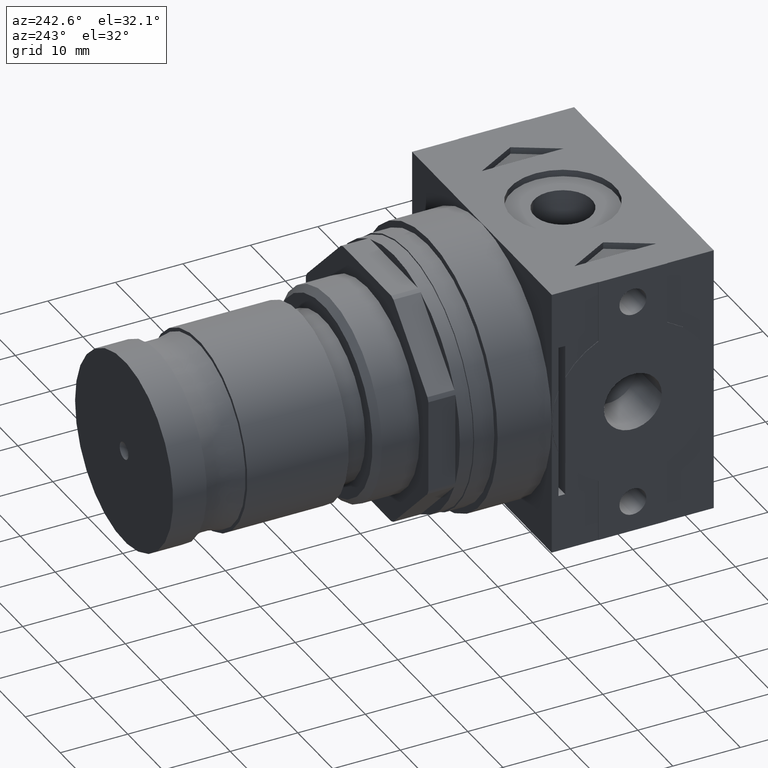
[diagram: clean part render]
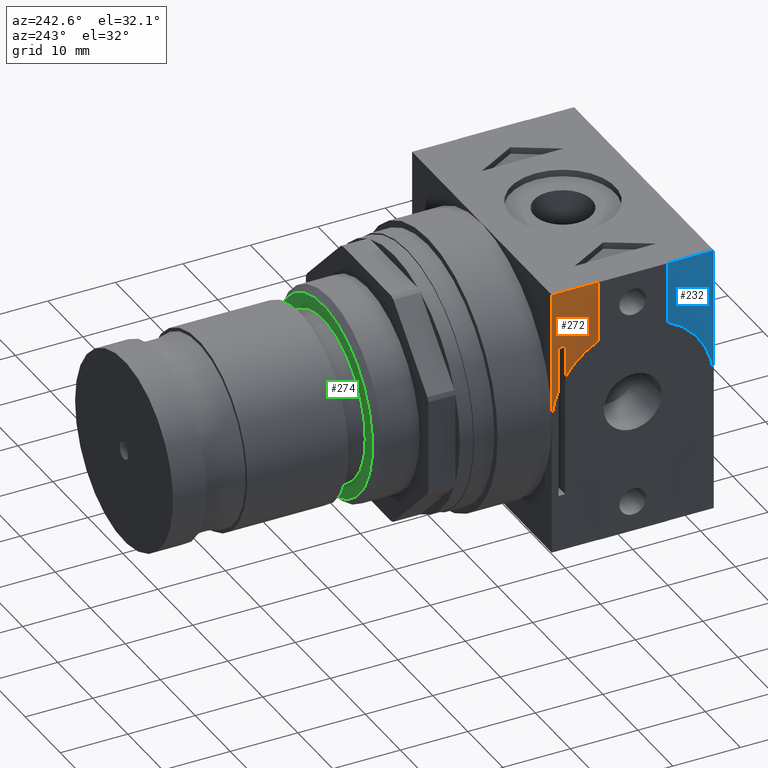
[diagram: same view with three faces highlighted in distinct colors, each labeled with its STEP entity id]
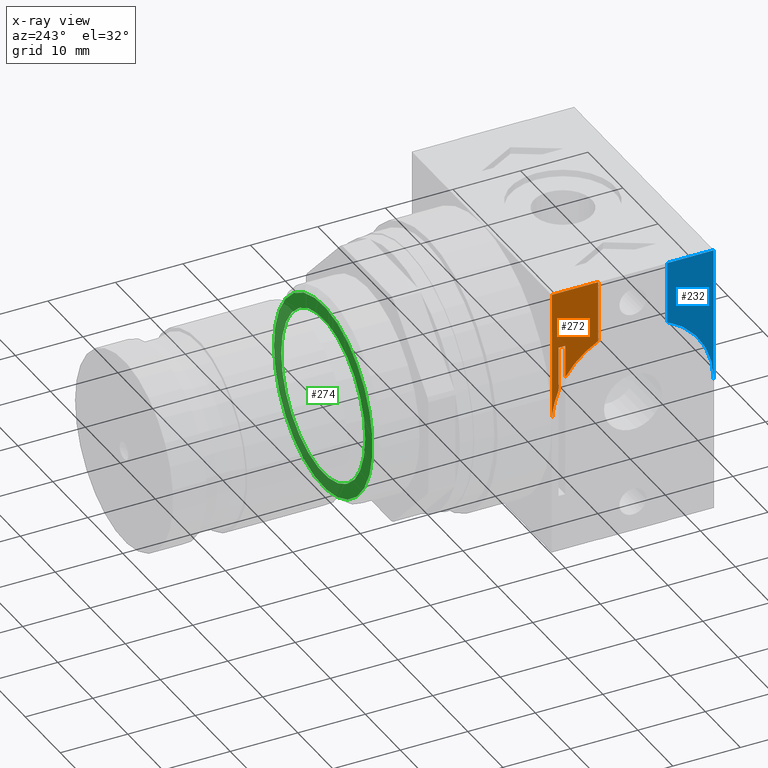
[diagram: x-ray of the same camera — body ghosted, the three highlighted faces saturated]
A machine part, auxiliary view with three faces highlighted in distinct colors.
The next image is the same camera in x-ray (body ghosted, the three faces saturated) — at least one of them is partly hidden behind the body in this view.
Their STEP definitions:

[orange] entity #272 — the highlighted planar face has unit normal (1, 0, 0).
#272 = ADVANCED_FACE( '', ( #607 ), #608, .F. );
#607 = FACE_OUTER_BOUND( '', #1052, .T. );
#608 = PLANE( '', #1053 );
#1052 = EDGE_LOOP( '', ( #1618, #1619, #1620, #1621, #1622, #1623, #1624, #1625 ) );
#1053 = AXIS2_PLACEMENT_3D( '', #1626, #1627, #1628 );
#1618 = ORIENTED_EDGE( '', *, *, #2551, .F. );
#1619 = ORIENTED_EDGE( '', *, *, #2552, .F. );
#1620 = ORIENTED_EDGE( '', *, *, #2553, .F. );
#1621 = ORIENTED_EDGE( '', *, *, #2554, .F. );
#1622 = ORIENTED_EDGE( '', *, *, #2555, .F. );
#1623 = ORIENTED_EDGE( '', *, *, #2509, .F. );
#1624 = ORIENTED_EDGE( '', *, *, #2556, .F. );
#1625 = ORIENTED_EDGE( '', *, *, #2557, .F. );
#1626 = CARTESIAN_POINT( '', ( -19.9500000000000, 0.000000000000000, 0.000000000000000 ) );
#1627 = DIRECTION( '', ( 1.00000000000000, 0.000000000000000, 0.000000000000000 ) );
#1628 = DIRECTION( '', ( 0.000000000000000, 0.000000000000000, -1.00000000000000 ) );
#2509 = EDGE_CURVE( '', #2964, #2891, #2967, .F. );
#2551 = EDGE_CURVE( '', #3028, #3029, #3030, .T. );
#2552 = EDGE_CURVE( '', #3031, #3028, #3032, .F. );
#2553 = EDGE_CURVE( '', #3033, #3031, #3034, .T. );
#2554 = EDGE_CURVE( '', #3035, #3033, #3036, .T. );
#2555 = EDGE_CURVE( '', #2891, #3035, #3037, .T. );
#2556 = EDGE_CURVE( '', #3038, #2964, #3039, .T. );
#2557 = EDGE_CURVE( '', #3029, #3038, #3040, .T. );
#2891 = VERTEX_POINT( '', #3490 );
#2964 = VERTEX_POINT( '', #3590 );
#2967 = CIRCLE( '', #3594, 12.0000000000000 );
#3028 = VERTEX_POINT( '', #3674 );
#3029 = VERTEX_POINT( '', #3675 );
#3030 = LINE( '', #3676, #3677 );
#3031 = VERTEX_POINT( '', #3678 );
#3032 = CIRCLE( '', #3679, 12.0000000000000 );
#3033 = VERTEX_POINT( '', #3680 );
#3034 = LINE( '', #3681, #3682 );
#3035 = VERTEX_POINT( '', #3683 );
#3036 = LINE( '', #3684, #3685 );
#3037 = LINE( '', #3686, #3687 );
#3038 = VERTEX_POINT( '', #3688 );
#3039 = LINE( '', #3689, #3690 );
#3040 = LINE( '', #3691, #3692 );
#3490 = CARTESIAN_POINT( '', ( -19.9500000000000, 12.0000000000000, 0.000000000000000 ) );
#3590 = CARTESIAN_POINT( '', ( -19.9500000000000, 11.0000000000000, 4.79583152331270 ) );
#3594 = AXIS2_PLACEMENT_3D( '', #4240, #4241, #4242 );
#3674 = CARTESIAN_POINT( '', ( -19.9500000000000, 10.0000000000000, 6.63324958071079 ) );
#3675 = CARTESIAN_POINT( '', ( -19.9500000000000, 10.0000000000000, 11.5000000000000 ) );
#3676 = CARTESIAN_POINT( '', ( -19.9500000000000, 10.0000000000000, 0.000000000000000 ) );
#3677 = VECTOR( '', #4292, 1000.00000000000 );
#3678 = CARTESIAN_POINT( '', ( -19.9500000000000, 5.10000000000000, 10.8623201941390 ) );
#3679 = AXIS2_PLACEMENT_3D( '', #4293, #4294, #4295 );
#3680 = CARTESIAN_POINT( '', ( -19.9500000000000, 5.10000000000000, 20.0000000000000 ) );
#3681 = CARTESIAN_POINT( '', ( -19.9500000000000, 5.10000000000000, 0.000000000000000 ) );
#3682 = VECTOR( '', #4296, 1000.00000000000 );
#3683 = CARTESIAN_POINT( '', ( -19.9500000000000, 12.0000000000000, 20.0000000000000 ) );
#3684 = CARTESIAN_POINT( '', ( -19.9500000000000, 12.0000000000000, 20.0000000000000 ) );
#3685 = VECTOR( '', #4297, 1000.00000000000 );
#3686 = CARTESIAN_POINT( '', ( -19.9500000000000, 12.0000000000000, -20.0000000000000 ) );
#3687 = VECTOR( '', #4298, 1000.00000000000 );
#3688 = CARTESIAN_POINT( '', ( -19.9500000000000, 11.0000000000000, 11.5000000000000 ) );
#3689 = CARTESIAN_POINT( '', ( -19.9500000000000, 11.0000000000000, 0.000000000000000 ) );
#3690 = VECTOR( '', #4299, 1000.00000000000 );
#3691 = CARTESIAN_POINT( '', ( -19.9500000000000, 0.000000000000000, 11.5000000000000 ) );
#3692 = VECTOR( '', #4300, 1000.00000000000 );
#4240 = CARTESIAN_POINT( '', ( -19.9500000000000, -8.67361737988404E-015, -1.73472347597681E-015 ) );
#4241 = DIRECTION( '', ( 1.00000000000000, 0.000000000000000, 0.000000000000000 ) );
#4242 = DIRECTION( '', ( 0.000000000000000, 0.000000000000000, -1.00000000000000 ) );
#4292 = DIRECTION( '', ( 0.000000000000000, -0.000000000000000, 1.00000000000000 ) );
#4293 = CARTESIAN_POINT( '', ( -19.9500000000000, -8.67361737988404E-015, -1.73472347597681E-015 ) );
#4294 = DIRECTION( '', ( 1.00000000000000, 0.000000000000000, 0.000000000000000 ) );
#4295 = DIRECTION( '', ( 0.000000000000000, 0.000000000000000, -1.00000000000000 ) );
#4296 = DIRECTION( '', ( 0.000000000000000, 0.000000000000000, -1.00000000000000 ) );
#4297 = DIRECTION( '', ( 0.000000000000000, -1.00000000000000, 0.000000000000000 ) );
#4298 = DIRECTION( '', ( 0.000000000000000, 0.000000000000000, 1.00000000000000 ) );
#4299 = DIRECTION( '', ( 0.000000000000000, 0.000000000000000, -1.00000000000000 ) );
#4300 = DIRECTION( '', ( -0.000000000000000, 1.00000000000000, 0.000000000000000 ) );

[blue] entity #232 — the highlighted planar face has unit normal (1, 0, 0).
#232 = ADVANCED_FACE( '', ( #542 ), #543, .F. );
#542 = FACE_OUTER_BOUND( '', #987, .T. );
#543 = PLANE( '', #988 );
#987 = EDGE_LOOP( '', ( #1466, #1467, #1468, #1469 ) );
#988 = AXIS2_PLACEMENT_3D( '', #1470, #1471, #1472 );
#1466 = ORIENTED_EDGE( '', *, *, #2471, .F. );
#1467 = ORIENTED_EDGE( '', *, *, #2472, .F. );
#1468 = ORIENTED_EDGE( '', *, *, #2473, .F. );
#1469 = ORIENTED_EDGE( '', *, *, #2474, .F. );
#1470 = CARTESIAN_POINT( '', ( -19.9500000000000, 0.000000000000000, 0.000000000000000 ) );
#1471 = DIRECTION( '', ( 1.00000000000000, 0.000000000000000, 0.000000000000000 ) );
#1472 = DIRECTION( '', ( 0.000000000000000, 0.000000000000000, -1.00000000000000 ) );
#2471 = EDGE_CURVE( '', #2903, #2904, #2905, .T. );
#2472 = EDGE_CURVE( '', #2906, #2903, #2907, .F. );
#2473 = EDGE_CURVE( '', #2908, #2906, #2909, .T. );
#2474 = EDGE_CURVE( '', #2904, #2908, #2910, .T. );
#2903 = VERTEX_POINT( '', #3507 );
#2904 = VERTEX_POINT( '', #3508 );
#2905 = LINE( '', #3509, #3510 );
#2906 = VERTEX_POINT( '', #3511 );
#2907 = CIRCLE( '', #3512, 12.0000000000000 );
#2908 = VERTEX_POINT( '', #3513 );
#2909 = LINE( '', #3514, #3515 );
#2910 = LINE( '', #3516, #3517 );
#3507 = CARTESIAN_POINT( '', ( -19.9500000000000, -5.10000000000000, 10.8623201941390 ) );
#3508 = CARTESIAN_POINT( '', ( -19.9500000000000, -5.10000000000000, 20.0000000000000 ) );
#3509 = CARTESIAN_POINT( '', ( -19.9500000000000, -5.10000000000000, 0.000000000000000 ) );
#3510 = VECTOR( '', #4199, 1000.00000000000 );
#3511 = CARTESIAN_POINT( '', ( -19.9500000000000, -12.0000000000000, 1.73472347597681E-015 ) );
#3512 = AXIS2_PLACEMENT_3D( '', #4200, #4201, #4202 );
#3513 = CARTESIAN_POINT( '', ( -19.9500000000000, -12.0000000000000, 20.0000000000000 ) );
#3514 = CARTESIAN_POINT( '', ( -19.9500000000000, -12.0000000000000, 20.0000000000000 ) );
#3515 = VECTOR( '', #4203, 1000.00000000000 );
#3516 = CARTESIAN_POINT( '', ( -19.9500000000000, 12.0000000000000, 20.0000000000000 ) );
#3517 = VECTOR( '', #4204, 1000.00000000000 );
#4199 = DIRECTION( '', ( 0.000000000000000, -0.000000000000000, 1.00000000000000 ) );
#4200 = CARTESIAN_POINT( '', ( -19.9500000000000, 8.67361737988404E-015, 1.73472347597681E-015 ) );
#4201 = DIRECTION( '', ( 1.00000000000000, 0.000000000000000, 0.000000000000000 ) );
#4202 = DIRECTION( '', ( 0.000000000000000, 0.000000000000000, -1.00000000000000 ) );
#4203 = DIRECTION( '', ( 0.000000000000000, 0.000000000000000, -1.00000000000000 ) );
#4204 = DIRECTION( '', ( 0.000000000000000, -1.00000000000000, 0.000000000000000 ) );

[green] entity #274 — the highlighted planar face has unit normal (0, -1, 0).
#274 = ADVANCED_FACE( '', ( #610, #611 ), #612, .F. );
#610 = FACE_BOUND( '', #1055, .T. );
#611 = FACE_OUTER_BOUND( '', #1056, .T. );
#612 = PLANE( '', #1057 );
#1055 = EDGE_LOOP( '', ( #1630 ) );
#1056 = EDGE_LOOP( '', ( #1631 ) );
#1057 = AXIS2_PLACEMENT_3D( '', #1632, #1633, #1634 );
#1630 = ORIENTED_EDGE( '', *, *, #2559, .F. );
#1631 = ORIENTED_EDGE( '', *, *, #2560, .T. );
#1632 = CARTESIAN_POINT( '', ( 15.5000000000000, 14.0800000000000, 0.000000000000000 ) );
#1633 = DIRECTION( '', ( -1.00000000000000, 0.000000000000000, 0.000000000000000 ) );
#1634 = DIRECTION( '', ( 0.000000000000000, 0.000000000000000, 1.00000000000000 ) );
#2559 = EDGE_CURVE( '', #3042, #3042, #3043, .T. );
#2560 = EDGE_CURVE( '', #3044, #3044, #3045, .T. );
#3042 = VERTEX_POINT( '', #3694 );
#3043 = CIRCLE( '', #3695, 12.0000000000000 );
#3044 = VERTEX_POINT( '', #3696 );
#3045 = CIRCLE( '', #3697, 14.0800000000000 );
#3694 = CARTESIAN_POINT( '', ( 15.5000000000000, 0.000000000000000, -12.0000000000000 ) );
#3695 = AXIS2_PLACEMENT_3D( '', #4301, #4302, #4303 );
#3696 = CARTESIAN_POINT( '', ( 15.5000000000000, 0.000000000000000, -14.0800000000000 ) );
#3697 = AXIS2_PLACEMENT_3D( '', #4304, #4305, #4306 );
#4301 = CARTESIAN_POINT( '', ( 15.5000000000000, 0.000000000000000, 0.000000000000000 ) );
#4302 = DIRECTION( '', ( 1.00000000000000, 0.000000000000000, -0.000000000000000 ) );
#4303 = DIRECTION( '', ( -0.000000000000000, 0.000000000000000, -1.00000000000000 ) );
#4304 = CARTESIAN_POINT( '', ( 15.5000000000000, 0.000000000000000, 0.000000000000000 ) );
#4305 = DIRECTION( '', ( 1.00000000000000, 0.000000000000000, -0.000000000000000 ) );
#4306 = DIRECTION( '', ( -0.000000000000000, 0.000000000000000, -1.00000000000000 ) );